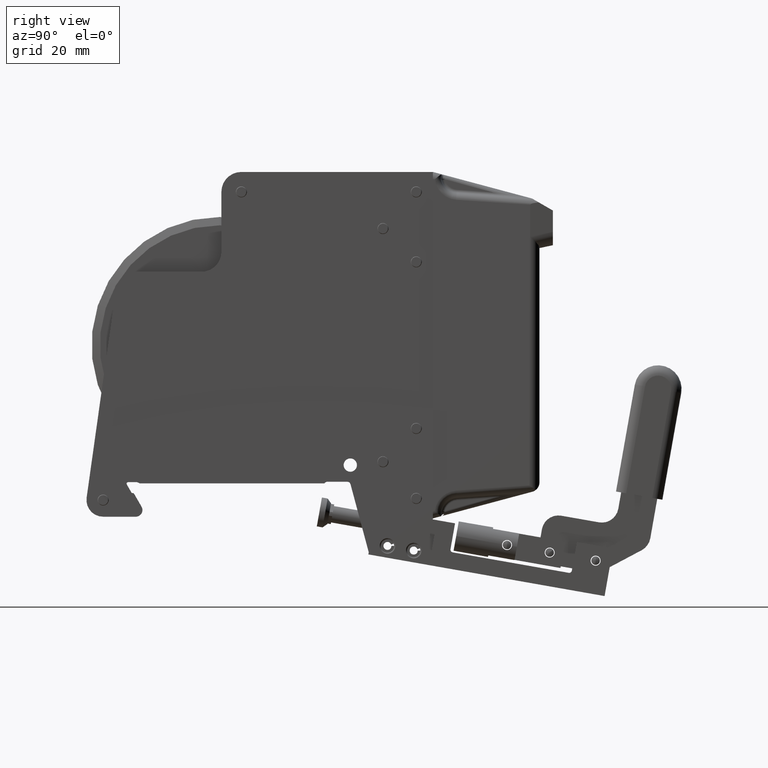
[diagram: clean part render]
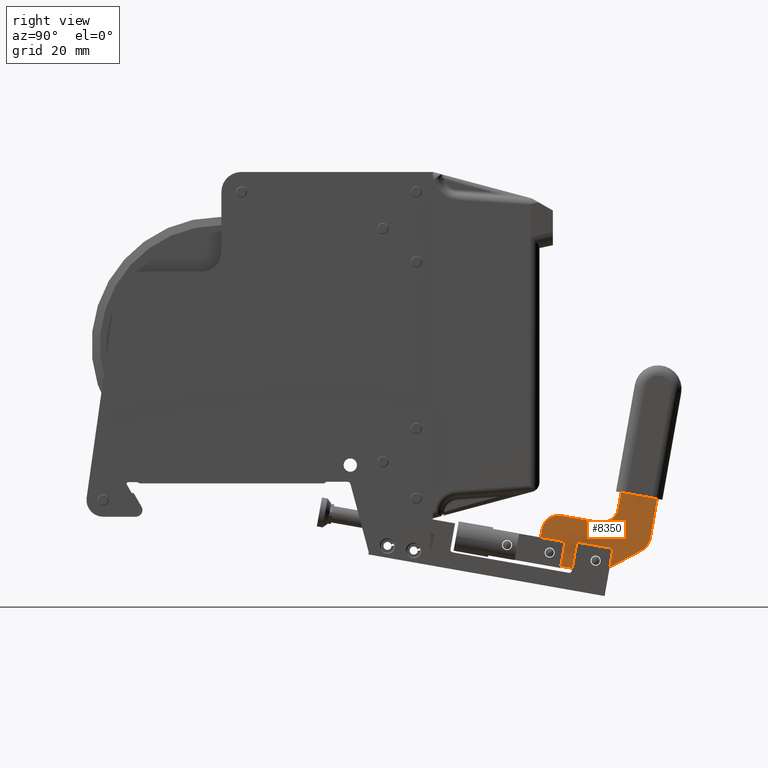
[diagram: same view with one face highlighted and labeled with its STEP entity id]
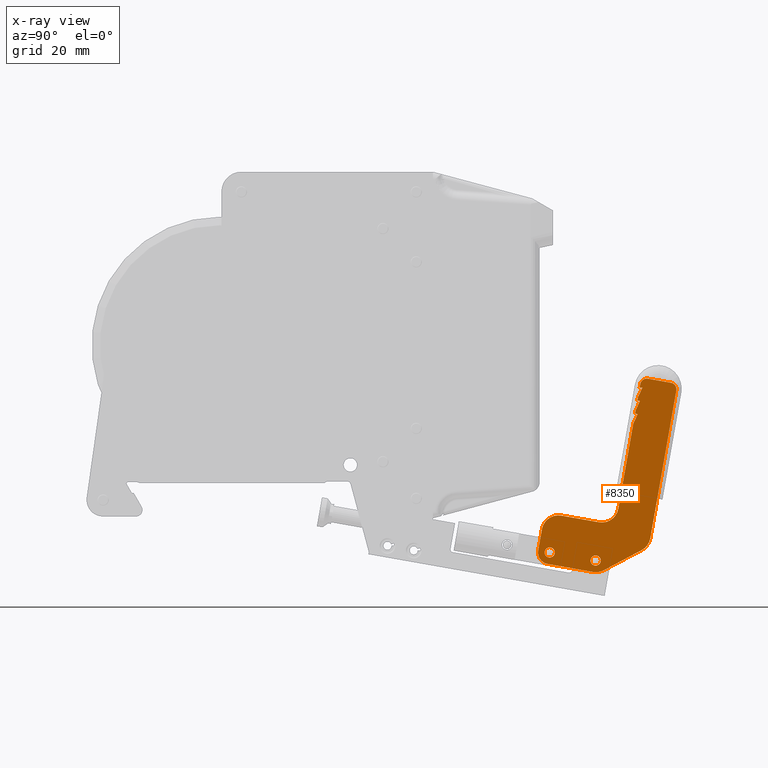
[diagram: x-ray of the same camera — body ghosted, the highlighted face saturated]
A machine part, right view. The second image highlights one B-rep face of the part: STEP entity #8350.
The next image is the same camera in x-ray: the body ghosted, the highlighted face saturated — about 0% of this face is hidden behind the body in this view.
In plain terms, the highlighted planar face has unit normal (-1, -0, 0).
Its self-contained STEP definition (entity closure, byte-faithful):
#263 = DIRECTION ( 'NONE',  ( -5.749368466564538575E-17, -0.8829475928589239908, -0.4694715627858964679 ) ) ;
#340 = DIRECTION ( 'NONE',  ( 0.000000000000000000, 0.1736481776669281663, 0.9848077530122084644 ) ) ;
#378 = DIRECTION ( 'NONE',  ( 1.109906930436757164E-16, 0.4226182617406943343, 0.9063077870366522681 ) ) ;
#442 = DIRECTION ( 'NONE',  ( 1.206041662501898854E-16, 0.1736481776669247801, 0.9848077530122091305 ) ) ;
#509 = VECTOR ( 'NONE', #36441, 39.37007874015748854 ) ;
#653 = DIRECTION ( 'NONE',  ( 2.126576849575703506E-17, -0.9848077530122091305, 0.1736481776669248356 ) ) ;
#814 = FACE_BOUND ( 'NONE', #38549, .T. ) ;
#856 = LINE ( 'NONE', #36937, #3398 ) ;
#870 = ORIENTED_EDGE ( 'NONE', *, *, #28363, .F. ) ;
#1163 = EDGE_CURVE ( 'NONE', #22711, #34216, #16130, .T. ) ;
#1210 = CARTESIAN_POINT ( 'NONE',  ( 0.2633858267716536194, 2.479811179237710217, -2.562772040665187934 ) ) ;
#1512 = VERTEX_POINT ( 'NONE', #31743 ) ;
#1663 = ORIENTED_EDGE ( 'NONE', *, *, #6575, .F. ) ;
#1707 = CARTESIAN_POINT ( 'NONE',  ( 0.2633858267716536194, 2.639440933465149630, -2.450998083432569974 ) ) ;
#1850 = LINE ( 'NONE', #17138, #35223 ) ;
#2236 = CARTESIAN_POINT ( 'NONE',  ( 0.2633858267716538415, 3.675745041682966452, -0.6548438875231334944 ) ) ;
#2376 = VECTOR ( 'NONE', #263, 39.37007874015748854 ) ;
#2452 = ORIENTED_EDGE ( 'NONE', *, *, #1163, .F. ) ;
#2496 = CARTESIAN_POINT ( 'NONE',  ( 0.2633858267716536194, 3.278675569402268231, -2.661259464881294612 ) ) ;
#2507 = DIRECTION ( 'NONE',  ( -1.000000000000000000, -6.336893751296555931E-33, 1.224646799147353207E-16 ) ) ;
#2603 = EDGE_LOOP ( 'NONE', ( #26076, #6627 ) ) ;
#2609 = ORIENTED_EDGE ( 'NONE', *, *, #4419, .T. ) ;
#2727 = CARTESIAN_POINT ( 'NONE',  ( 0.2633858267716536194, 2.650037574228288673, -2.390901547323557530 ) ) ;
#2825 = CIRCLE ( 'NONE', #24750, 0.06102362204724377792 ) ;
#3141 = CIRCLE ( 'NONE', #8203, 0.1968503937007874127 ) ;
#3145 = CARTESIAN_POINT ( 'NONE',  ( 0.2633858267716538415, 3.703091211394292426, -0.4997560524031000040 ) ) ;
#3152 = EDGE_CURVE ( 'NONE', #15022, #38115, #25845, .T. ) ;
#3259 = LINE ( 'NONE', #15234, #2376 ) ;
#3398 = VECTOR ( 'NONE', #653, 39.37007874015748143 ) ;
#3414 = VERTEX_POINT ( 'NONE', #10539 ) ;
#3841 = DIRECTION ( 'NONE',  ( 2.126576849575599352E-17, -0.9848077530122105738, 0.1736481776669162591 ) ) ;
#3865 = AXIS2_PLACEMENT_3D ( 'NONE', #17994, #5284, #29171 ) ;
#4139 = EDGE_CURVE ( 'NONE', #3414, #37056, #9356, .T. ) ;
#4151 = DIRECTION ( 'NONE',  ( 0.000000000000000000, 0.1736481776669142885, 0.9848077530122109069 ) ) ;
#4346 = DIRECTION ( 'NONE',  ( 1.000000000000000000, 6.336893751296555931E-33, -1.224646799147353207E-16 ) ) ;
#4419 = EDGE_CURVE ( 'NONE', #30745, #25523, #12181, .T. ) ;
#4472 = EDGE_CURVE ( 'NONE', #28100, #34216, #9721, .T. ) ;
#4606 = EDGE_CURVE ( 'NONE', #27056, #30720, #34536, .T. ) ;
#4677 = CARTESIAN_POINT ( 'NONE',  ( 0.2633858267716538415, 4.136419300402215171, -0.5361860603292405436 ) ) ;
#5179 = ORIENTED_EDGE ( 'NONE', *, *, #23635, .F. ) ;
#5284 = DIRECTION ( 'NONE',  ( -1.000000000000000000, -6.336893751296555931E-33, 1.224646799147353207E-16 ) ) ;
#5290 = CARTESIAN_POINT ( 'NONE',  ( 0.2633858267716538415, 3.734108778418299579, -0.5052252863453654541 ) ) ;
#5466 = CIRCLE ( 'NONE', #20504, 0.1968503937007873295 ) ;
#5701 = ORIENTED_EDGE ( 'NONE', *, *, #23495, .F. ) ;
#5715 = CARTESIAN_POINT ( 'NONE',  ( 0.2633858267716538415, 3.627889244688144554, -0.9262475989831906453 ) ) ;
#5753 = AXIS2_PLACEMENT_3D ( 'NONE', #16485, #34505, #38601 ) ;
#5988 = ORIENTED_EDGE ( 'NONE', *, *, #27236, .F. ) ;
#5997 = CARTESIAN_POINT ( 'NONE',  ( 0.2633858267716538970, 3.801144756237803790, -0.3971132609187388307 ) ) ;
#6192 = CARTESIAN_POINT ( 'NONE',  ( 0.2633858267716538415, 3.648398871971639146, -0.8099317226431654859 ) ) ;
#6256 = VECTOR ( 'NONE', #30562, 39.37007874015748143 ) ;
#6575 = EDGE_CURVE ( 'NONE', #30745, #36843, #27421, .T. ) ;
#6627 = ORIENTED_EDGE ( 'NONE', *, *, #21777, .T. ) ;
#6772 = VERTEX_POINT ( 'NONE', #18166 ) ;
#6845 = CARTESIAN_POINT ( 'NONE',  ( 0.2633858267716536194, 2.503739077735120944, -2.427070184935158803 ) ) ;
#6869 = ORIENTED_EDGE ( 'NONE', *, *, #27746, .F. ) ;
#7008 = ORIENTED_EDGE ( 'NONE', *, *, #7779, .T. ) ;
#7114 = CARTESIAN_POINT ( 'NONE',  ( 0.2633858267716538415, 3.655333582731952191, -0.7706030235838983167 ) ) ;
#7211 = CARTESIAN_POINT ( 'NONE',  ( 0.2633858267716536194, 3.828355557756043748, -2.283302363281920044 ) ) ;
#7291 = CARTESIAN_POINT ( 'NONE',  ( 0.2633858267716536194, 3.182248356385264820, -2.546709677422213769 ) ) ;
#7379 = CARTESIAN_POINT ( 'NONE',  ( 0.2633858267716536194, 2.742036397416067750, -2.209235165004263646 ) ) ;
#7661 = DIRECTION ( 'NONE',  ( 0.000000000000000000, 0.1736481776669226706, 0.9848077530122094636 ) ) ;
#7746 = EDGE_CURVE ( 'NONE', #37056, #37875, #36658, .T. ) ;
#7779 = EDGE_CURVE ( 'NONE', #11651, #19840, #32040, .T. ) ;
#8203 = AXIS2_PLACEMENT_3D ( 'NONE', #13152, #36606, #16434 ) ;
#8304 = VECTOR ( 'NONE', #33471, 39.37007874015748143 ) ;
#8314 = CIRCLE ( 'NONE', #10837, 0.06102362204724377792 ) ;
#8350 = ADVANCED_FACE ( 'NONE', ( #814, #36886, #22072 ), #9736, .F. ) ;
#8672 = EDGE_CURVE ( 'NONE', #30720, #27056, #8314, .T. ) ;
#8757 = ORIENTED_EDGE ( 'NONE', *, *, #8672, .T. ) ;
#8822 = VERTEX_POINT ( 'NONE', #7211 ) ;
#9066 = EDGE_CURVE ( 'NONE', #33973, #8822, #3141, .T. ) ;
#9356 = LINE ( 'NONE', #6192, #33398 ) ;
#9358 = LINE ( 'NONE', #35781, #29211 ) ;
#9451 = DIRECTION ( 'NONE',  ( 1.000000000000000000, 6.336893751296555931E-33, -1.224646799147353207E-16 ) ) ;
#9646 = CARTESIAN_POINT ( 'NONE',  ( 0.2633858267716536194, 2.639440933465149630, -2.450998083432569974 ) ) ;
#9721 = CIRCLE ( 'NONE', #38446, 0.07874015748031500117 ) ;
#9736 = PLANE ( 'NONE',  #12088 ) ;
#9773 = DIRECTION ( 'NONE',  ( 2.126576849575703506E-17, -0.9848077530122091305, 0.1736481776669248356 ) ) ;
#10292 = LINE ( 'NONE', #36690, #12613 ) ;
#10539 = CARTESIAN_POINT ( 'NONE',  ( 0.2633858267716538415, 3.648398871971639146, -0.8099317226431654859 ) ) ;
#10837 = AXIS2_PLACEMENT_3D ( 'NONE', #1707, #2507, #25858 ) ;
#10998 = EDGE_CURVE ( 'NONE', #38830, #12894, #2825, .T. ) ;
#11085 = DIRECTION ( 'NONE',  ( -1.000000000000000000, -9.244463733058730726E-33, 1.224646799147352961E-16 ) ) ;
#11199 = VECTOR ( 'NONE', #16653, 39.37007874015748143 ) ;
#11399 = ORIENTED_EDGE ( 'NONE', *, *, #9066, .T. ) ;
#11594 = AXIS2_PLACEMENT_3D ( 'NONE', #9646, #9451, #15308 ) ;
#11651 = VERTEX_POINT ( 'NONE', #25162 ) ;
#12088 = AXIS2_PLACEMENT_3D ( 'NONE', #1210, #11085, #20071 ) ;
#12181 = CIRCLE ( 'NONE', #11594, 0.1377952755905510474 ) ;
#12278 = LINE ( 'NONE', #12467, #13465 ) ;
#12467 = CARTESIAN_POINT ( 'NONE',  ( 0.2633858267716538415, 3.682679752443278609, -0.6155151884638653259 ) ) ;
#12577 = LINE ( 'NONE', #24523, #509 ) ;
#12613 = VECTOR ( 'NONE', #22254, 39.37007874015748143 ) ;
#12716 = CARTESIAN_POINT ( 'NONE',  ( 0.2633858267716538970, 4.072548467697862051, -0.4449690579135607837 ) ) ;
#12726 = CARTESIAN_POINT ( 'NONE',  ( 0.2633858267716536194, 2.628844292702010588, -2.511094619541582418 ) ) ;
#12887 = CARTESIAN_POINT ( 'NONE',  ( 0.2633858267716536194, 3.218828475443810344, -2.693080729196538403 ) ) ;
#12894 = VERTEX_POINT ( 'NONE', #33777 ) ;
#13000 = CARTESIAN_POINT ( 'NONE',  ( 0.2633858267716538415, 3.787471671382141913, -0.4746571784787552706 ) ) ;
#13152 = CARTESIAN_POINT ( 'NONE',  ( 0.2633858267716536194, 3.634495763856002259, -2.249119651142761356 ) ) ;
#13455 = AXIS2_PLACEMENT_3D ( 'NONE', #23898, #15237, #24251 ) ;
#13465 = VECTOR ( 'NONE', #21491, 39.37007874015748854 ) ;
#13994 = DIRECTION ( 'NONE',  ( 1.000000000000000000, 6.336893751296555931E-33, -1.224646799147353207E-16 ) ) ;
#14191 = VERTEX_POINT ( 'NONE', #30566 ) ;
#14718 = VECTOR ( 'NONE', #21657, 39.37007874015748143 ) ;
#14746 = EDGE_CURVE ( 'NONE', #35886, #14191, #10292, .T. ) ;
#15022 = VERTEX_POINT ( 'NONE', #37961 ) ;
#15234 = CARTESIAN_POINT ( 'NONE',  ( 0.2633858267716536194, 3.811683535080210294, -2.377854102379631573 ) ) ;
#15237 = DIRECTION ( 'NONE',  ( -1.000000000000000000, -6.336893751296555931E-33, 1.224646799147353207E-16 ) ) ;
#15308 = DIRECTION ( 'NONE',  ( 0.000000000000000000, 0.1736481776669234756, 0.9848077530122093526 ) ) ;
#15756 = CARTESIAN_POINT ( 'NONE',  ( 0.2633858267716538970, 3.723600838677788349, -0.3834401760630754552 ) ) ;
#16000 = ORIENTED_EDGE ( 'NONE', *, *, #4139, .F. ) ;
#16060 = ORIENTED_EDGE ( 'NONE', *, *, #7746, .F. ) ;
#16076 = ORIENTED_EDGE ( 'NONE', *, *, #17039, .F. ) ;
#16130 = LINE ( 'NONE', #15756, #14718 ) ;
#16434 = DIRECTION ( 'NONE',  ( 1.734723475976807094E-16, 0.1736481776669296095, 0.9848077530122081313 ) ) ;
#16485 = CARTESIAN_POINT ( 'NONE',  ( 0.2633858267716536194, 3.186259907436540306, -2.487450883609853225 ) ) ;
#16651 = DIRECTION ( 'NONE',  ( 2.126576849575702890E-17, -0.9848077530122091305, 0.1736481776669248078 ) ) ;
#16653 = DIRECTION ( 'NONE',  ( 1.109906930436756671E-16, 0.4226182617406953890, 0.9063077870366517130 ) ) ;
#17039 = EDGE_CURVE ( 'NONE', #1512, #30640, #1850, .T. ) ;
#17138 = CARTESIAN_POINT ( 'NONE',  ( 0.2633858267716536750, 3.415956429425362373, -2.128178321163445741 ) ) ;
#17632 = VECTOR ( 'NONE', #378, 39.37007874015748854 ) ;
#17994 = CARTESIAN_POINT ( 'NONE',  ( 0.2633858267716536194, 2.639440933465149630, -2.450998083432569974 ) ) ;
#18166 = CARTESIAN_POINT ( 'NONE',  ( 0.2633858267716538970, 3.709927753822125140, -0.4609840936230919506 ) ) ;
#18349 = LINE ( 'NONE', #36357, #28438 ) ;
#18632 = VERTEX_POINT ( 'NONE', #30678 ) ;
#19017 = DIRECTION ( 'NONE',  ( -1.000000000000000000, -6.336893751296555931E-33, 1.224646799147353207E-16 ) ) ;
#19040 = ORIENTED_EDGE ( 'NONE', *, *, #32849, .T. ) ;
#19617 = LINE ( 'NONE', #31544, #11199 ) ;
#19840 = VERTEX_POINT ( 'NONE', #2496 ) ;
#20071 = DIRECTION ( 'NONE',  ( 1.206041662501898854E-16, 0.1736481776669247801, 0.9848077530122091305 ) ) ;
#20279 = ORIENTED_EDGE ( 'NONE', *, *, #4606, .T. ) ;
#20504 = AXIS2_PLACEMENT_3D ( 'NONE', #7379, #13994, #33596 ) ;
#20564 = VECTOR ( 'NONE', #9773, 39.37007874015748143 ) ;
#20589 = LINE ( 'NONE', #5290, #32747 ) ;
#21491 = DIRECTION ( 'NONE',  ( 1.109906930436757164E-16, 0.4226182617406943343, 0.9063077870366522681 ) ) ;
#21573 = CARTESIAN_POINT ( 'NONE',  ( 0.2633858267716536194, 2.479811179237710217, -2.562772040665187934 ) ) ;
#21657 = DIRECTION ( 'NONE',  ( -2.126576849575703506E-17, 0.9848077530122091305, -0.1736481776669248356 ) ) ;
#21777 = EDGE_CURVE ( 'NONE', #12894, #38830, #34835, .T. ) ;
#21780 = ORIENTED_EDGE ( 'NONE', *, *, #23666, .F. ) ;
#21791 = CARTESIAN_POINT ( 'NONE',  ( 0.2633858267716538415, 4.058875382842198398, -0.5225129754735772236 ) ) ;
#22030 = ORIENTED_EDGE ( 'NONE', *, *, #4472, .T. ) ;
#22072 = FACE_OUTER_BOUND ( 'NONE', #27141, .T. ) ;
#22149 = CARTESIAN_POINT ( 'NONE',  ( 0.2633858267716538415, 3.655333582731952191, -0.7706030235838983167 ) ) ;
#22254 = DIRECTION ( 'NONE',  ( 1.206041662501898854E-16, 0.1736481776669247801, 0.9848077530122091305 ) ) ;
#22294 = LINE ( 'NONE', #12887, #20564 ) ;
#22711 = VERTEX_POINT ( 'NONE', #5997 ) ;
#23495 = EDGE_CURVE ( 'NONE', #30640, #37514, #19617, .T. ) ;
#23635 = EDGE_CURVE ( 'NONE', #33973, #19840, #3259, .T. ) ;
#23666 = EDGE_CURVE ( 'NONE', #11651, #25523, #22294, .T. ) ;
#23898 = CARTESIAN_POINT ( 'NONE',  ( 0.2633858267716536750, 3.256279347664479129, -1.900135815124246230 ) ) ;
#24073 = EDGE_CURVE ( 'NONE', #28100, #8822, #12577, .T. ) ;
#24251 = DIRECTION ( 'NONE',  ( 1.734723475976808820E-16, 0.1736481776669242527, 0.9848077530122091305 ) ) ;
#24523 = CARTESIAN_POINT ( 'NONE',  ( 0.2633858267716538970, 4.150092385257878824, -0.4586421427692241592 ) ) ;
#24750 = AXIS2_PLACEMENT_3D ( 'NONE', #37398, #19017, #7661 ) ;
#24759 = ORIENTED_EDGE ( 'NONE', *, *, #14746, .F. ) ;
#25162 = CARTESIAN_POINT ( 'NONE',  ( 0.2633858267716536194, 3.152077195297382950, -2.681310677509894713 ) ) ;
#25448 = CARTESIAN_POINT ( 'NONE',  ( 0.2633858267716536750, 2.582359315655185394, -1.981192658965064801 ) ) ;
#25523 = VERTEX_POINT ( 'NONE', #31803 ) ;
#25845 = LINE ( 'NONE', #25448, #6256 ) ;
#25858 = DIRECTION ( 'NONE',  ( 0.000000000000000000, 0.1736481776669226706, 0.9848077530122094636 ) ) ;
#25862 = CARTESIAN_POINT ( 'NONE',  ( 0.2633858267716536194, 3.192844997148403863, -2.486613141313201325 ) ) ;
#26076 = ORIENTED_EDGE ( 'NONE', *, *, #10998, .T. ) ;
#27056 = VERTEX_POINT ( 'NONE', #2727 ) ;
#27141 = EDGE_LOOP ( 'NONE', ( #1663, #2609, #21780, #7008, #5179, #11399, #31329, #22030, #2452, #19040, #37635, #6869, #34970, #24759, #5988, #16060, #16000, #870, #5701, #16076, #37454, #30837, #30787 ) ) ;
#27236 = EDGE_CURVE ( 'NONE', #37875, #35886, #18349, .T. ) ;
#27248 = DIRECTION ( 'NONE',  ( 1.000000000000000000, 6.336893751296555931E-33, -1.224646799147353207E-16 ) ) ;
#27421 = LINE ( 'NONE', #21573, #8304 ) ;
#27746 = EDGE_CURVE ( 'NONE', #18632, #35664, #20589, .T. ) ;
#28100 = VERTEX_POINT ( 'NONE', #4677 ) ;
#28235 = DIRECTION ( 'NONE',  ( -1.000000000000000000, -6.336893751296555931E-33, 1.224646799147353207E-16 ) ) ;
#28243 = EDGE_CURVE ( 'NONE', #1512, #38115, #34667, .T. ) ;
#28363 = EDGE_CURVE ( 'NONE', #37514, #3414, #856, .T. ) ;
#28438 = VECTOR ( 'NONE', #3841, 39.37007874015748854 ) ;
#29089 = DIRECTION ( 'NONE',  ( 1.206041662501898854E-16, 0.1736481776669247801, 0.9848077530122091305 ) ) ;
#29171 = DIRECTION ( 'NONE',  ( 0.000000000000000000, 0.1736481776669226706, 0.9848077530122094636 ) ) ;
#29211 = VECTOR ( 'NONE', #442, 39.37007874015748143 ) ;
#29461 = AXIS2_PLACEMENT_3D ( 'NONE', #13000, #4346, #4151 ) ;
#30420 = AXIS2_PLACEMENT_3D ( 'NONE', #7291, #28235, #31944 ) ;
#30562 = DIRECTION ( 'NONE',  ( -2.126576849575703506E-17, 0.9848077530122091305, -0.1736481776669248356 ) ) ;
#30566 = CARTESIAN_POINT ( 'NONE',  ( 0.2633858267716538415, 3.682679752443278609, -0.6155151884638653259 ) ) ;
#30640 = VERTEX_POINT ( 'NONE', #5715 ) ;
#30678 = CARTESIAN_POINT ( 'NONE',  ( 0.2633858267716538415, 3.734108778418299579, -0.5052252863453654541 ) ) ;
#30720 = VERTEX_POINT ( 'NONE', #12726 ) ;
#30745 = VERTEX_POINT ( 'NONE', #6845 ) ;
#30787 = ORIENTED_EDGE ( 'NONE', *, *, #36506, .T. ) ;
#30837 = ORIENTED_EDGE ( 'NONE', *, *, #3152, .F. ) ;
#31329 = ORIENTED_EDGE ( 'NONE', *, *, #24073, .F. ) ;
#31527 = CARTESIAN_POINT ( 'NONE',  ( 0.2633858267716536194, 3.726911425821730184, -2.422928232414203187 ) ) ;
#31544 = CARTESIAN_POINT ( 'NONE',  ( 0.2633858267716538415, 3.627889244688144554, -0.9262475989831906453 ) ) ;
#31743 = CARTESIAN_POINT ( 'NONE',  ( 0.2633858267716536750, 3.450139141564521061, -1.934318527263404475 ) ) ;
#31803 = CARTESIAN_POINT ( 'NONE',  ( 0.2633858267716536194, 2.615513034967738903, -2.586699939162598660 ) ) ;
#31944 = DIRECTION ( 'NONE',  ( 0.000000000000000000, 0.1736481776669226706, 0.9848077530122094636 ) ) ;
#32040 = CIRCLE ( 'NONE', #5753, 0.1968503937007874127 ) ;
#32747 = VECTOR ( 'NONE', #16651, 39.37007874015748143 ) ;
#32849 = EDGE_CURVE ( 'NONE', #22711, #6772, #36341, .T. ) ;
#33395 = DIRECTION ( 'NONE',  ( 1.206041662501898854E-16, 0.1736481776669247801, 0.9848077530122091305 ) ) ;
#33398 = VECTOR ( 'NONE', #33395, 39.37007874015748143 ) ;
#33471 = DIRECTION ( 'NONE',  ( 1.206041662501898854E-16, 0.1736481776669247801, 0.9848077530122091305 ) ) ;
#33596 = DIRECTION ( 'NONE',  ( 1.734723475976807834E-16, 0.1736481776669269450, 0.9848077530122085754 ) ) ;
#33777 = CARTESIAN_POINT ( 'NONE',  ( 0.2633858267716536194, 3.171651715622126222, -2.606806213531226213 ) ) ;
#33973 = VERTEX_POINT ( 'NONE', #31527 ) ;
#34216 = VERTEX_POINT ( 'NONE', #12716 ) ;
#34402 = EDGE_CURVE ( 'NONE', #14191, #18632, #12278, .T. ) ;
#34505 = DIRECTION ( 'NONE',  ( 1.000000000000000000, 6.336893751296555931E-33, -1.224646799147353207E-16 ) ) ;
#34536 = CIRCLE ( 'NONE', #3865, 0.06102362204724377792 ) ;
#34667 = CIRCLE ( 'NONE', #13455, 0.1968503937007872184 ) ;
#34835 = CIRCLE ( 'NONE', #30420, 0.06102362204724377792 ) ;
#34970 = ORIENTED_EDGE ( 'NONE', *, *, #34402, .F. ) ;
#35223 = VECTOR ( 'NONE', #29089, 39.37007874015748143 ) ;
#35441 = CARTESIAN_POINT ( 'NONE',  ( 0.2633858267716538415, 3.706762608706972717, -0.6603131214653988890 ) ) ;
#35664 = VERTEX_POINT ( 'NONE', #3145 ) ;
#35781 = CARTESIAN_POINT ( 'NONE',  ( 0.2633858267716538415, 3.703091211394292426, -0.4997560524031000040 ) ) ;
#35886 = VERTEX_POINT ( 'NONE', #2236 ) ;
#35938 = CARTESIAN_POINT ( 'NONE',  ( 0.2633858267716538415, 3.679565617103867758, -0.8154272607108417059 ) ) ;
#36100 = CARTESIAN_POINT ( 'NONE',  ( 0.2633858267716536750, 3.222096635525321329, -2.093995609024287052 ) ) ;
#36341 = CIRCLE ( 'NONE', #29461, 0.07874015748031500117 ) ;
#36345 = EDGE_CURVE ( 'NONE', #35664, #6772, #9358, .T. ) ;
#36357 = CARTESIAN_POINT ( 'NONE',  ( 0.2633858267716538415, 3.706762608706972717, -0.6603131214653988890 ) ) ;
#36441 = DIRECTION ( 'NONE',  ( -1.206041662501898607E-16, -0.1736481776669248911, -0.9848077530122089085 ) ) ;
#36506 = EDGE_CURVE ( 'NONE', #15022, #36843, #5466, .T. ) ;
#36606 = DIRECTION ( 'NONE',  ( 1.000000000000000000, 6.336893751296555931E-33, -1.224646799147353207E-16 ) ) ;
#36658 = LINE ( 'NONE', #7114, #17632 ) ;
#36690 = CARTESIAN_POINT ( 'NONE',  ( 0.2633858267716538415, 3.675745041682966452, -0.6548438875231334944 ) ) ;
#36843 = VERTEX_POINT ( 'NONE', #37604 ) ;
#36886 = FACE_BOUND ( 'NONE', #2603, .T. ) ;
#36937 = CARTESIAN_POINT ( 'NONE',  ( 0.2633858267716538415, 3.679565617103867758, -0.8154272607108417059 ) ) ;
#37056 = VERTEX_POINT ( 'NONE', #22149 ) ;
#37398 = CARTESIAN_POINT ( 'NONE',  ( 0.2633858267716536194, 3.182248356385264820, -2.546709677422213769 ) ) ;
#37454 = ORIENTED_EDGE ( 'NONE', *, *, #28243, .T. ) ;
#37514 = VERTEX_POINT ( 'NONE', #35938 ) ;
#37604 = CARTESIAN_POINT ( 'NONE',  ( 0.2633858267716536194, 2.548176603516026706, -2.175052452865105401 ) ) ;
#37635 = ORIENTED_EDGE ( 'NONE', *, *, #36345, .F. ) ;
#37875 = VERTEX_POINT ( 'NONE', #35441 ) ;
#37961 = CARTESIAN_POINT ( 'NONE',  ( 0.2633858267716536750, 2.776219109555226439, -2.015375371104223046 ) ) ;
#38115 = VERTEX_POINT ( 'NONE', #36100 ) ;
#38446 = AXIS2_PLACEMENT_3D ( 'NONE', #21791, #27248, #340 ) ;
#38549 = EDGE_LOOP ( 'NONE', ( #20279, #8757 ) ) ;
#38601 = DIRECTION ( 'NONE',  ( 1.734723475976807094E-16, 0.1736481776669296095, 0.9848077530122081313 ) ) ;
#38830 = VERTEX_POINT ( 'NONE', #25862 ) ;